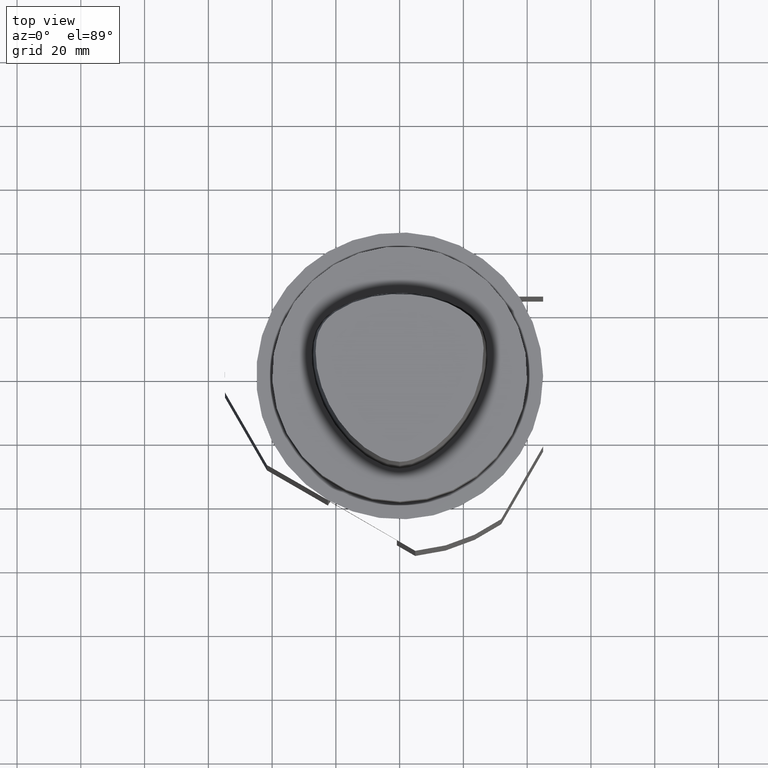
[diagram: clean part render]
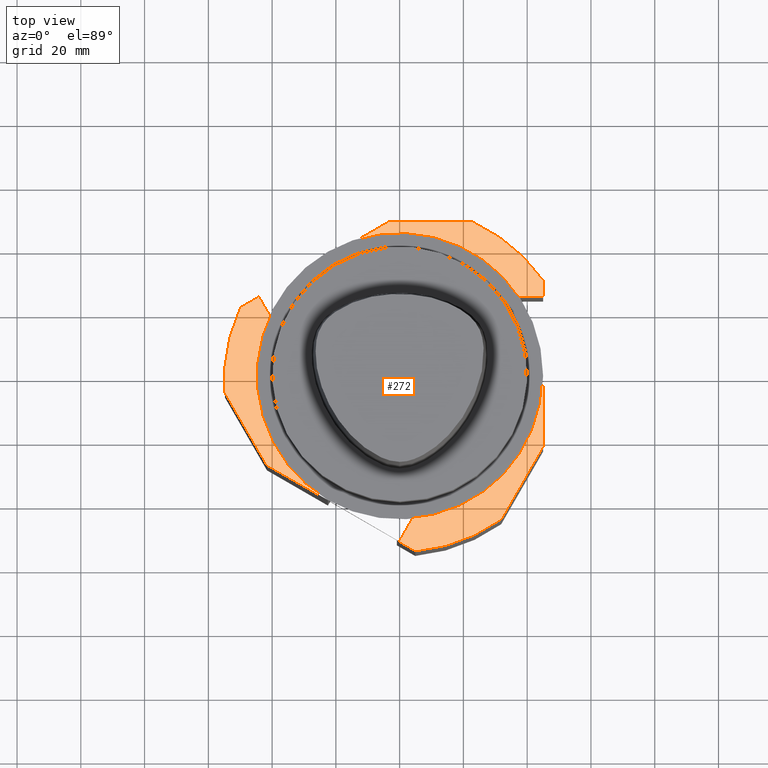
[diagram: same view with one face highlighted and labeled with its STEP entity id]
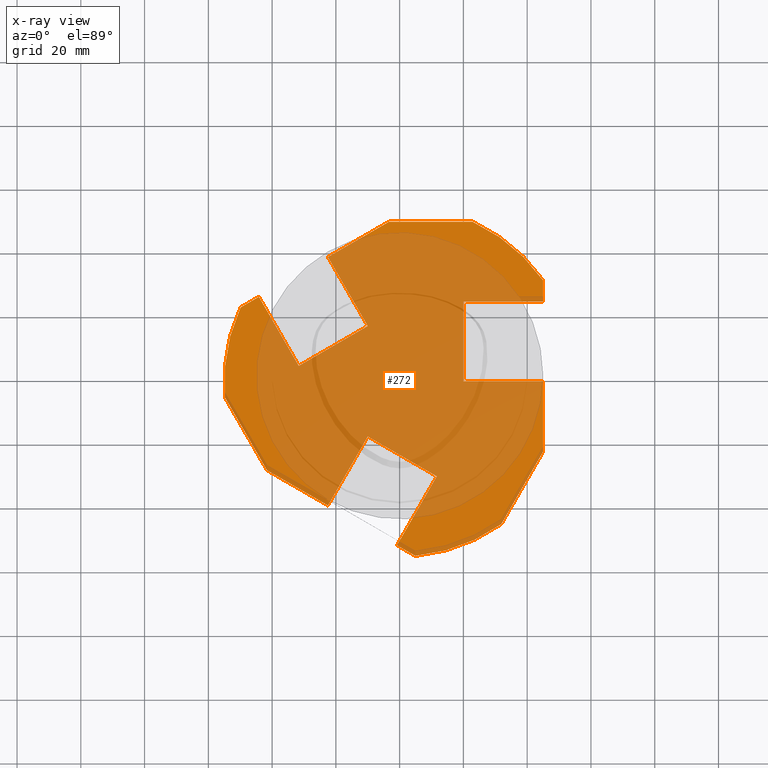
[diagram: x-ray of the same camera — body ghosted, the highlighted face saturated]
A machine part, top view. The second image highlights one B-rep face of the part: STEP entity #272.
The next image is the same camera in x-ray: the body ghosted, the highlighted face saturated — about 78% of this face is hidden behind the body in this view.
In plain terms, the highlighted planar face has unit normal (-0, 0, 1).
Its self-contained STEP definition (entity closure, byte-faithful):
#133=EDGE_CURVE('240[2]',#390,#391,#392,.T.);
#144=EDGE_CURVE('240[2]',#402,#410,#411,.T.);
#151=EDGE_CURVE('240[2]',#421,#422,#423,.T.);
#164=EDGE_CURVE('240[2]',#441,#421,#442,.T.);
#181=EDGE_CURVE('240[2]',#391,#467,#468,.T.);
#185=EDGE_CURVE('240[2]',#410,#441,#473,.T.);
#201=EDGE_CURVE('240[2]',#498,#379,#499,.T.);
#209=EDGE_CURVE('240[2]',#510,#511,#512,.F.);
#221=EDGE_CURVE('240[2]',#490,#527,#528,.T.);
#223=EDGE_CURVE('240[2]',#530,#478,#531,.T.);
#225=EDGE_CURVE('240[2]',#487,#406,#533,.F.);
#238=EDGE_CURVE('240[2]',#467,#413,#551,.T.);
#242=EDGE_CURVE('240[2]',#379,#530,#556,.T.);
#244=EDGE_CURVE('240[2]',#510,#490,#558,.T.);
#248=EDGE_CURVE('240[2]',#553,#498,#562,.T.);
#258=EDGE_CURVE('240[2]',#478,#511,#574,.F.);
#272=ADVANCED_FACE('240[2]',(#591),#592,.F.);
#292=EDGE_CURVE('240[2]',#422,#475,#615,.T.);
#309=EDGE_CURVE('240[2]',#402,#413,#636,.F.);
#311=EDGE_CURVE('240[2]',#527,#390,#638,.T.);
#315=EDGE_CURVE('240[2]',#406,#475,#642,.T.);
#359=EDGE_CURVE('240[2]',#487,#553,#692,.T.);
#379=VERTEX_POINT('',#703);
#390=VERTEX_POINT('',#720);
#391=VERTEX_POINT('',#721);
#392=LINE('',#722,#723);
#402=VERTEX_POINT('',#1135);
#406=VERTEX_POINT('',#1141);
#410=VERTEX_POINT('',#1147);
#411=LINE('',#1148,#1149);
#413=VERTEX_POINT('',#1152);
#421=VERTEX_POINT('',#1163);
#422=VERTEX_POINT('',#1164);
#423=LINE('',#1165,#1166);
#441=VERTEX_POINT('',#1190);
#442=LINE('',#1191,#1192);
#467=VERTEX_POINT('',#1226);
#468=LINE('',#1227,#1228);
#473=LINE('',#1245,#1246);
#475=VERTEX_POINT('',#1249);
#478=VERTEX_POINT('',#1254);
#487=VERTEX_POINT('',#1266);
#490=VERTEX_POINT('',#1271);
#498=VERTEX_POINT('',#1282);
#499=LINE('',#1283,#1284);
#510=VERTEX_POINT('',#1298);
#511=VERTEX_POINT('',#1299);
#512=CIRCLE('',#1300,54.9998880971371);
#527=VERTEX_POINT('',#1333);
#528=LINE('',#1334,#1335);
#530=VERTEX_POINT('',#1338);
#531=LINE('',#1339,#1340);
#533=CIRCLE('',#1343,55.0);
#551=LINE('',#1380,#1381);
#553=VERTEX_POINT('',#1384);
#556=LINE('',#1389,#1390);
#558=LINE('',#1393,#1394);
#562=LINE('',#1448,#1449);
#574=LINE('',#1465,#1466);
#591=FACE_OUTER_BOUND('',#1493,.T.);
#592=PLANE('',#1494);
#615=LINE('',#1561,#1562);
#636=CIRCLE('',#1591,55.0);
#638=LINE('',#1594,#1595);
#642=LINE('',#2105,#2106);
#692=LINE('',#2289,#2290);
#703=CARTESIAN_POINT('',(20.0000000494144,-6.82121026329696E-013,-130.0));
#720=CARTESIAN_POINT('',(-10.0000000247072,17.3205081184823,-130.0));
#721=CARTESIAN_POINT('',(-31.6506363451487,4.82050795107904,-130.0));
#722=CARTESIAN_POINT('',(-10.0000000247072,17.3205081184823,-130.0));
#723=VECTOR('',#2299,25.000001145302);
#1135=CARTESIAN_POINT('',(-54.7577092094039,-5.15686747341632,-130.0));
#1141=CARTESIAN_POINT('',(4.88626245435181,-54.7825194676849,-130.0));
#1147=CARTESIAN_POINT('',(-41.6025421760538,-27.9422860963007,-130.0));
#1148=CARTESIAN_POINT('',(-45.2392064005338,-21.6433986298341,-130.0));
#1149=VECTOR('',#2307,1.91434478124523);
#1152=CARTESIAN_POINT('',(-49.8861277533006,23.1597551321543,-130.0));
#1163=CARTESIAN_POINT('',(-10.0000000247073,-17.3205081184835,-130.0));
#1164=CARTESIAN_POINT('',(11.6506358277944,-29.8205090963823,-130.0));
#1165=CARTESIAN_POINT('',(-10.0000000247074,-17.3205081184836,-130.0));
#1166=VECTOR('',#2317,25.000001145302);
#1190=CARTESIAN_POINT('',(-22.5000003427979,-38.9711437640436,-130.0));
#1191=CARTESIAN_POINT('',(-22.5000003427979,-38.9711437640436,-130.0));
#1192=VECTOR('',#2341,25.0000006361812);
#1226=CARTESIAN_POINT('',(-44.1506342710993,26.4711437548649,-130.0));
#1227=CARTESIAN_POINT('',(-31.6506363451487,4.82050795107902,-130.0));
#1228=VECTOR('',#2369,23.4743889977479);
#1245=CARTESIAN_POINT('',(-36.9615245704847,-30.6217788597298,-130.0));
#1246=VECTOR('',#2370,16.6987298107778);
#1249=CARTESIAN_POINT('',(-0.84936611801593,-51.4711432597015,-130.0));
#1254=CARTESIAN_POINT('',(45.0000015430633,24.9999989945342,-130.0));
#1266=CARTESIAN_POINT('',(31.8448352143208,-44.8431318060282,-130.0));
#1271=CARTESIAN_POINT('',(-3.39745878692711,49.9999999999993,-130.0));
#1282=CARTESIAN_POINT('',(45.0000006179372,-6.82121026329696E-013,-130.0));
#1283=CARTESIAN_POINT('',(45.0000006179372,-6.82121026329696E-013,-130.0));
#1284=VECTOR('',#2389,25.0000005685228);
#1298=CARTESIAN_POINT('',(22.9128667639617,49.9999999999993,-130.0));
#1299=CARTESIAN_POINT('',(45.0000017881392,31.6227706304607,-130.0));
#1300=AXIS2_PLACEMENT_3D('',#2412,#2413,#2414);
#1333=CARTESIAN_POINT('',(-22.4999999112944,38.9711430166565,-130.0));
#1334=CARTESIAN_POINT('',(-8.0350542307738,47.3224830893541,-130.0));
#1335=VECTOR('',#2434,16.7026804600416);
#1338=CARTESIAN_POINT('',(20.0000005173542,25.0000011453013,-130.0));
#1339=CARTESIAN_POINT('',(20.0000005173542,25.0000011453013,-130.0));
#1340=VECTOR('',#2435,23.474388997748);
#1343=AXIS2_PLACEMENT_3D('',#2436,#2437,#2438);
#1380=CARTESIAN_POINT('',(-30.0422595895878,34.6166174704703,-130.0));
#1381=VECTOR('',#2450,1.0);
#1384=CARTESIAN_POINT('',(44.9999998016906,-22.0577128442572,-130.0));
#1389=CARTESIAN_POINT('',(20.0000000494144,-6.83009204749396E-013,-130.0));
#1390=VECTOR('',#2452,25.000001145302);
#1393=CARTESIAN_POINT('',(3.87588699526561,49.9999999999993,-130.0));
#1394=VECTOR('',#2453,1.91436276819951);
#1448=CARTESIAN_POINT('',(44.9999999999835,-16.6991754821917,-130.0));
#1449=VECTOR('',#2454,16.699175482191);
#1465=CARTESIAN_POINT('',(45.0000002442262,-10.0989201240869,-130.0));
#1466=VECTOR('',#2465,1.0);
#1493=EDGE_LOOP('',(#2480,#2481,#2482,#2483,#2484,#2485,#2486,#2487,#2488,#2489,#2490,#2491,#2492,#2493,#2494,#2495,#2496,#2497,#2498,#2499,#2500));
#1494=AXIS2_PLACEMENT_3D('',#2501,#2502,#2503);
#1561=CARTESIAN_POINT('',(11.6506358277944,-29.8205090963823,-130.0));
#1562=VECTOR('',#2523,23.4743889977469);
#1591=AXIS2_PLACEMENT_3D('',#2555,#2556,#2557);
#1594=CARTESIAN_POINT('',(-22.4999999112945,38.9711430166565,-130.0));
#1595=VECTOR('',#2558,24.9999997731744);
#2105=CARTESIAN_POINT('',(-5.93485398546426,-48.5351157097729,-130.0));
#2106=VECTOR('',#2559,1.0);
#2289=CARTESIAN_POINT('',(41.3633280298358,-28.3566146480183,-130.0));
#2290=VECTOR('',#2632,1.91352096382783);
#2299=DIRECTION('',(-0.866025413143233,-0.499999983790093,0.0));
#2307=DIRECTION('',(0.499999984544937,-0.866025412707423,0.0));
#2317=DIRECTION('',(0.866025394425645,-0.500000016209906,0.0));
#2341=DIRECTION('',(0.500000000000002,0.866025403784437,0.0));
#2369=DIRECTION('',(-0.499999925495245,0.866025446799775,0.0));
#2370=DIRECTION('',(0.86602540382161,-0.499999999935618,0.0));
#2389=DIRECTION('',(-1.0,0.0,0.0));
#2412=CARTESIAN_POINT('',(7.61573401936138E-005,8.28269207033827E-005,-130.0));
#2413=DIRECTION('',(0.0,0.0,1.0));
#2414=DIRECTION('',(-1.0,0.0,0.0));
#2434=DIRECTION('',(-0.866025409222523,-0.499999990580961,0.0));
#2435=DIRECTION('',(0.999999999999996,-8.60306810662707E-008,0.0));
#2436=CARTESIAN_POINT('',(-9.4704812334832E-014,-7.95807864051312E-013,-130.0));
#2437=DIRECTION('',(0.0,0.0,1.0));
#2438=DIRECTION('',(-1.0,0.0,0.0));
#2450=DIRECTION('',(-0.866025409222523,-0.499999990580962,0.0));
#2452=DIRECTION('',(1.87175892869986E-008,1.0,0.0));
#2453=DIRECTION('',(-1.0,0.0,0.0));
#2454=DIRECTION('',(3.70050445477373E-008,0.999999999999999,0.0));
#2465=DIRECTION('',(-3.70050438894777E-008,-0.999999999999999,0.0));
#2480=ORIENTED_EDGE('',*,*,#181,.F.);
#2481=ORIENTED_EDGE('',*,*,#133,.F.);
#2482=ORIENTED_EDGE('',*,*,#311,.F.);
#2483=ORIENTED_EDGE('',*,*,#221,.F.);
#2484=ORIENTED_EDGE('',*,*,#244,.F.);
#2485=ORIENTED_EDGE('',*,*,#209,.T.);
#2486=ORIENTED_EDGE('',*,*,#258,.F.);
#2487=ORIENTED_EDGE('',*,*,#223,.F.);
#2488=ORIENTED_EDGE('',*,*,#242,.F.);
#2489=ORIENTED_EDGE('',*,*,#201,.F.);
#2490=ORIENTED_EDGE('',*,*,#248,.F.);
#2491=ORIENTED_EDGE('',*,*,#359,.F.);
#2492=ORIENTED_EDGE('',*,*,#225,.T.);
#2493=ORIENTED_EDGE('',*,*,#315,.T.);
#2494=ORIENTED_EDGE('',*,*,#292,.F.);
#2495=ORIENTED_EDGE('',*,*,#151,.F.);
#2496=ORIENTED_EDGE('',*,*,#164,.F.);
#2497=ORIENTED_EDGE('',*,*,#185,.F.);
#2498=ORIENTED_EDGE('',*,*,#144,.F.);
#2499=ORIENTED_EDGE('',*,*,#309,.T.);
#2500=ORIENTED_EDGE('',*,*,#238,.F.);
#2501=CARTESIAN_POINT('',(1.10310060433198E-014,-25.0750000000001,-130.0));
#2502=DIRECTION('',(-0.0,0.0,1.0));
#2503=DIRECTION('',(1.0,0.0,0.0));
#2523=DIRECTION('',(-0.500000074504754,-0.866025360769095,0.0));
#2555=CARTESIAN_POINT('',(-9.4704812334832E-014,-7.95807864051312E-013,-130.0));
#2556=DIRECTION('',(0.0,0.0,1.0));
#2557=DIRECTION('',(-1.0,0.0,0.0));
#2558=DIRECTION('',(0.499999999999999,-0.866025403784439,0.0));
#2559=DIRECTION('',(-0.866031320374671,0.499989752025083,-0.0));
#2632=DIRECTION('',(0.49999990924268,0.866025456183195,0.0));